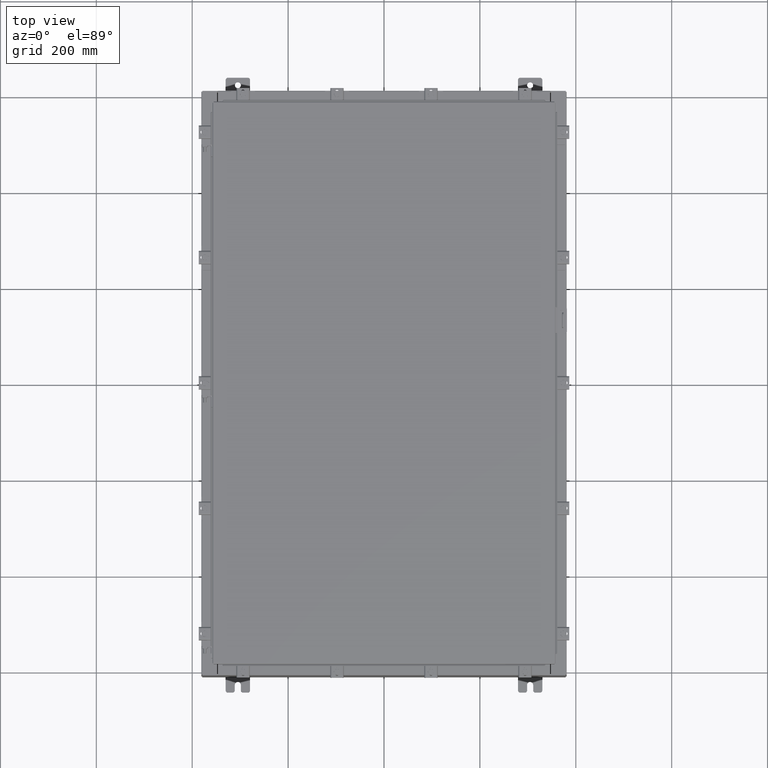
[diagram: clean part render]
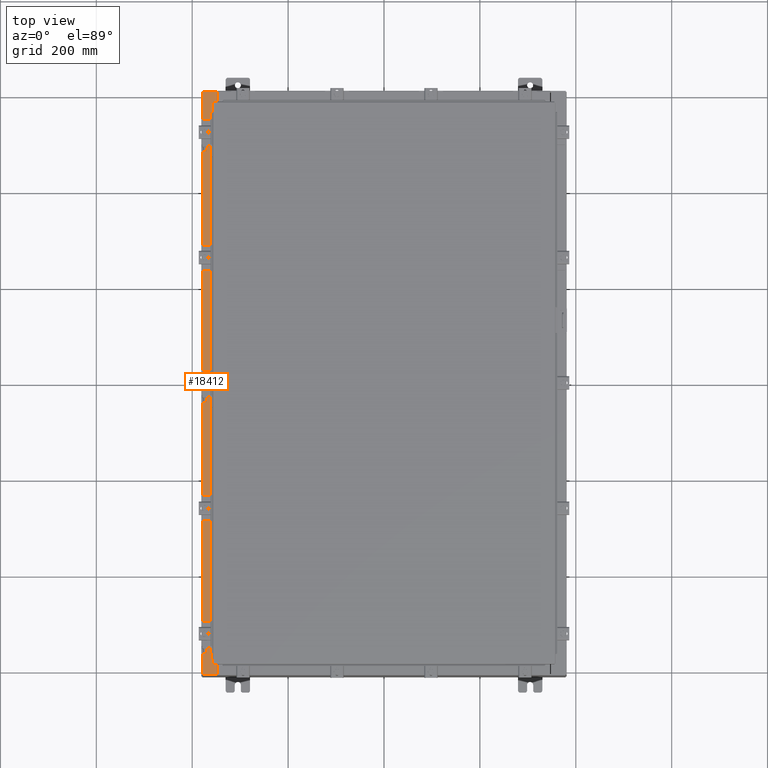
[diagram: same view with one face highlighted and labeled with its STEP entity id]
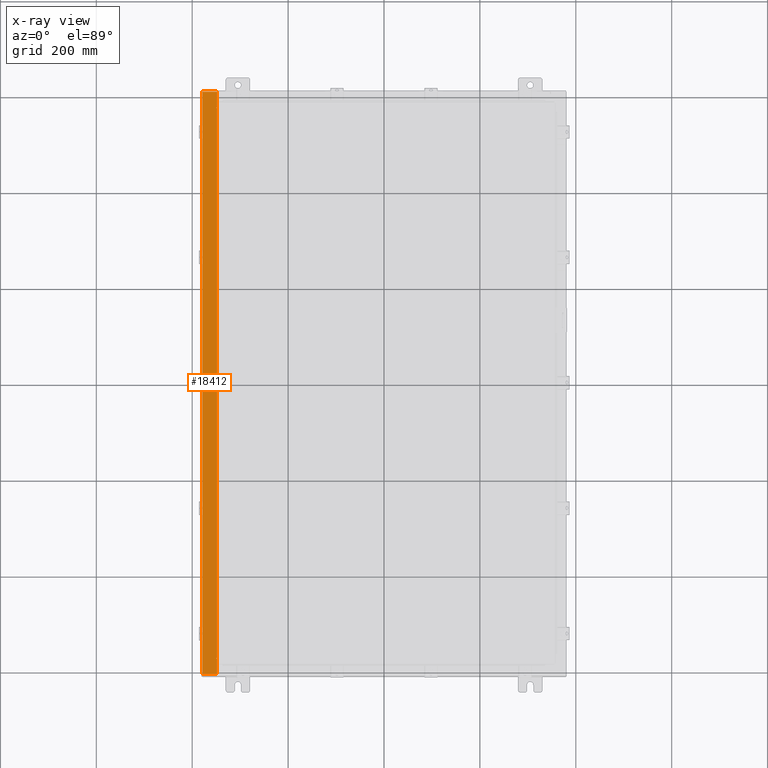
[diagram: x-ray of the same camera — body ghosted, the highlighted face saturated]
A machine part, top view. The second image highlights one B-rep face of the part: STEP entity #18412.
The next image is the same camera in x-ray: the body ghosted, the highlighted face saturated — about 0% of this face is hidden behind the body in this view.
In plain terms, the highlighted planar face has unit normal (0, -0, -1).
Its self-contained STEP definition (entity closure, byte-faithful):
#184 = VERTEX_POINT ( 'NONE', #13271 ) ;
#240 = CARTESIAN_POINT ( 'NONE',  ( -7.105562016127586800E-014, -23.92529999999998200, 9.925300000000104800 ) ) ;
#720 = CARTESIAN_POINT ( 'NONE',  ( -13.75005000000003700, -22.61242499999997300, 9.925300000000008900 ) ) ;
#1049 = CARTESIAN_POINT ( 'NONE',  ( -13.75005000000003700, 22.61242500000000200, 9.925300000000008900 ) ) ;
#1480 = EDGE_CURVE ( 'NONE', #2238, #11731, #4685, .T. ) ;
#2238 = VERTEX_POINT ( 'NONE', #19620 ) ;
#2393 = ORIENTED_EDGE ( 'NONE', *, *, #5030, .F. ) ;
#2642 = DIRECTION ( 'NONE',  ( 1.000000000000000000, 0.0000000000000000000, 0.0000000000000000000 ) ) ;
#2695 = EDGE_LOOP ( 'NONE', ( #4223, #19213, #23004, #6409, #20455, #5871, #19754, #6890, #2393, #11668, #3245, #10117 ) ) ;
#2727 = LINE ( 'NONE', #5250, #16699 ) ;
#2787 = EDGE_CURVE ( 'NONE', #12703, #15545, #5531, .T. ) ;
#2980 = DIRECTION ( 'NONE',  ( 1.000000000000000000, 0.0000000000000000000, 0.0000000000000000000 ) ) ;
#3001 = PLANE ( 'NONE',  #16446 ) ;
#3026 = CARTESIAN_POINT ( 'NONE',  ( -13.69970000000003900, 22.63110000000000400, 9.925300000000007100 ) ) ;
#3245 = ORIENTED_EDGE ( 'NONE', *, *, #1480, .F. ) ;
#3676 = EDGE_CURVE ( 'NONE', #7210, #10365, #20337, .T. ) ;
#3778 = AXIS2_PLACEMENT_3D ( 'NONE', #1049, #14369, #2980 ) ;
#4021 = VECTOR ( 'NONE', #9174, 39.37007874015748100 ) ;
#4223 = ORIENTED_EDGE ( 'NONE', *, *, #3676, .F. ) ;
#4300 = DIRECTION ( 'NONE',  ( 4.567295697298285000E-017, 1.000000000000000000, -4.567295697298248600E-017 ) ) ;
#4685 = LINE ( 'NONE', #11755, #9159 ) ;
#4933 = DIRECTION ( 'NONE',  ( -1.000000000000000000, 0.0000000000000000000, -7.132762385546384700E-015 ) ) ;
#5030 = EDGE_CURVE ( 'NONE', #7065, #18020, #22102, .T. ) ;
#5250 = CARTESIAN_POINT ( 'NONE',  ( -13.69970000000003900, 4.533177998439465900E-016, 9.925300000000007100 ) ) ;
#5531 = LINE ( 'NONE', #240, #10557 ) ;
#5871 = ORIENTED_EDGE ( 'NONE', *, *, #13083, .T. ) ;
#6229 = CARTESIAN_POINT ( 'NONE',  ( -7.105562016127584200E-014, 23.92529999999999600, 9.925300000000103000 ) ) ;
#6409 = ORIENTED_EDGE ( 'NONE', *, *, #19323, .F. ) ;
#6674 = CARTESIAN_POINT ( 'NONE',  ( -13.75005000000003700, -22.63109999999997500, 9.925300000000008900 ) ) ;
#6890 = ORIENTED_EDGE ( 'NONE', *, *, #23949, .F. ) ;
#6954 = VECTOR ( 'NONE', #21483, 39.37007874015748100 ) ;
#7018 = EDGE_CURVE ( 'NONE', #7210, #12587, #17258, .T. ) ;
#7065 = VERTEX_POINT ( 'NONE', #13996 ) ;
#7144 = DIRECTION ( 'NONE',  ( 0.0000000000000000000, 1.000000000000000000, -4.567295697298281900E-017 ) ) ;
#7210 = VERTEX_POINT ( 'NONE', #3026 ) ;
#7294 = LINE ( 'NONE', #21319, #21258 ) ;
#7375 = CARTESIAN_POINT ( 'NONE',  ( -13.75005000000003700, -22.63109999999997500, 9.925300000000007100 ) ) ;
#7917 = CARTESIAN_POINT ( 'NONE',  ( -14.91230000000003900, -23.92529999999998200, 9.925299999999998200 ) ) ;
#7955 = DIRECTION ( 'NONE',  ( 1.000000000000000000, 0.0000000000000000000, 0.0000000000000000000 ) ) ;
#8220 = EDGE_CURVE ( 'NONE', #12587, #20537, #15973, .T. ) ;
#8663 = CARTESIAN_POINT ( 'NONE',  ( -7.105562016127585500E-014, 4.533177998439511200E-016, 9.925300000000104800 ) ) ;
#9076 = LINE ( 'NONE', #20531, #4021 ) ;
#9130 = CARTESIAN_POINT ( 'NONE',  ( -13.69970000000003900, -23.92529999999998200, 9.925300000000007100 ) ) ;
#9159 = VECTOR ( 'NONE', #7955, 39.37007874015748100 ) ;
#9174 = DIRECTION ( 'NONE',  ( -0.0000000000000000000, -1.000000000000000000, -0.0000000000000000000 ) ) ;
#9576 = CARTESIAN_POINT ( 'NONE',  ( -13.69970000000003900, 23.92529999999999600, 9.925300000000005300 ) ) ;
#10097 = CARTESIAN_POINT ( 'NONE',  ( -13.69970000000003900, 4.533177998439465900E-016, 9.925300000000007100 ) ) ;
#10117 = ORIENTED_EDGE ( 'NONE', *, *, #24058, .F. ) ;
#10228 = VECTOR ( 'NONE', #18059, 39.37007874015748100 ) ;
#10365 = VERTEX_POINT ( 'NONE', #12337 ) ;
#10557 = VECTOR ( 'NONE', #15455, 39.37007874015748100 ) ;
#10928 = VECTOR ( 'NONE', #23325, 39.37007874015748100 ) ;
#10943 = CARTESIAN_POINT ( 'NONE',  ( -13.71270000000003900, 22.59375000000000000, 9.925300000000008900 ) ) ;
#11408 = CIRCLE ( 'NONE', #16963, 0.01867499999999949400 ) ;
#11489 = CARTESIAN_POINT ( 'NONE',  ( -13.75005000000003700, -22.59374999999997500, 9.925300000000008900 ) ) ;
#11668 = ORIENTED_EDGE ( 'NONE', *, *, #23521, .F. ) ;
#11731 = VERTEX_POINT ( 'NONE', #10943 ) ;
#11755 = CARTESIAN_POINT ( 'NONE',  ( -13.75005000000003700, 22.59375000000000000, 9.925300000000008900 ) ) ;
#11812 = VERTEX_POINT ( 'NONE', #7375 ) ;
#11990 = DIRECTION ( 'NONE',  ( 0.0000000000000000000, 1.000000000000000000, -4.567295697298281900E-017 ) ) ;
#12314 = CARTESIAN_POINT ( 'NONE',  ( -13.69970000000003900, 22.63110000000000400, 9.925300000000007100 ) ) ;
#12337 = CARTESIAN_POINT ( 'NONE',  ( -13.75005000000003700, 22.63110000000000000, 9.925300000000007100 ) ) ;
#12481 = VECTOR ( 'NONE', #19957, 39.37007874015748100 ) ;
#12587 = VERTEX_POINT ( 'NONE', #9576 ) ;
#12703 = VERTEX_POINT ( 'NONE', #7917 ) ;
#13083 = EDGE_CURVE ( 'NONE', #15545, #184, #2727, .T. ) ;
#13243 = CARTESIAN_POINT ( 'NONE',  ( -14.91230000000003900, 23.92529999999999600, 9.925299999999998200 ) ) ;
#13271 = CARTESIAN_POINT ( 'NONE',  ( -13.69970000000003900, -22.63109999999998200, 9.925300000000007100 ) ) ;
#13971 = EDGE_CURVE ( 'NONE', #11812, #184, #20828, .T. ) ;
#13996 = CARTESIAN_POINT ( 'NONE',  ( -13.71270000000003900, -22.59374999999997500, 9.925300000000008900 ) ) ;
#14035 = DIRECTION ( 'NONE',  ( -7.132762385546384700E-015, 4.567295697298281300E-017, 1.000000000000000000 ) ) ;
#14369 = DIRECTION ( 'NONE',  ( -7.132762385546384700E-015, 4.567295697298281300E-017, 1.000000000000000000 ) ) ;
#15455 = DIRECTION ( 'NONE',  ( 1.000000000000000000, -4.379057701015053300E-047, 7.132762385546384700E-015 ) ) ;
#15545 = VERTEX_POINT ( 'NONE', #9130 ) ;
#15973 = LINE ( 'NONE', #6229, #10928 ) ;
#16286 = DIRECTION ( 'NONE',  ( 7.132762385546384700E-015, -4.567295697298280600E-017, -1.000000000000000000 ) ) ;
#16446 = AXIS2_PLACEMENT_3D ( 'NONE', #8663, #16286, #4933 ) ;
#16667 = VECTOR ( 'NONE', #11990, 39.37007874015748100 ) ;
#16699 = VECTOR ( 'NONE', #7144, 39.37007874015748100 ) ;
#16963 = AXIS2_PLACEMENT_3D ( 'NONE', #720, #14035, #2642 ) ;
#17258 = LINE ( 'NONE', #10097, #16667 ) ;
#17656 = CARTESIAN_POINT ( 'NONE',  ( -13.71270000000003900, -22.59374999999997500, 9.925300000000008900 ) ) ;
#18020 = VERTEX_POINT ( 'NONE', #11489 ) ;
#18059 = DIRECTION ( 'NONE',  ( -1.000000000000000000, -8.681145560800197900E-014, 4.340572780400098900E-014 ) ) ;
#18412 = ADVANCED_FACE ( 'NONE', ( #18942 ), #3001, .F. ) ;
#18942 = FACE_OUTER_BOUND ( 'NONE', #2695, .T. ) ;
#19157 = CIRCLE ( 'NONE', #3778, 0.01867499999999949400 ) ;
#19213 = ORIENTED_EDGE ( 'NONE', *, *, #7018, .T. ) ;
#19323 = EDGE_CURVE ( 'NONE', #12703, #20537, #7294, .T. ) ;
#19620 = CARTESIAN_POINT ( 'NONE',  ( -13.75005000000003700, 22.59375000000000000, 9.925300000000007100 ) ) ;
#19754 = ORIENTED_EDGE ( 'NONE', *, *, #13971, .F. ) ;
#19957 = DIRECTION ( 'NONE',  ( 1.000000000000000000, -8.681145560800197900E-014, -4.340572780400098900E-014 ) ) ;
#20337 = LINE ( 'NONE', #12314, #10228 ) ;
#20455 = ORIENTED_EDGE ( 'NONE', *, *, #2787, .T. ) ;
#20531 = CARTESIAN_POINT ( 'NONE',  ( -13.71270000000003900, 22.59375000000000000, 9.925300000000008900 ) ) ;
#20537 = VERTEX_POINT ( 'NONE', #13243 ) ;
#20828 = LINE ( 'NONE', #6674, #12481 ) ;
#21258 = VECTOR ( 'NONE', #4300, 39.37007874015748100 ) ;
#21319 = CARTESIAN_POINT ( 'NONE',  ( -14.91230000000003700, 23.92529999999999600, 9.925299999999998200 ) ) ;
#21483 = DIRECTION ( 'NONE',  ( -1.000000000000000000, 0.0000000000000000000, 0.0000000000000000000 ) ) ;
#22102 = LINE ( 'NONE', #17656, #6954 ) ;
#23004 = ORIENTED_EDGE ( 'NONE', *, *, #8220, .T. ) ;
#23325 = DIRECTION ( 'NONE',  ( -1.000000000000000000, 4.379057701015053300E-047, -7.132762385546384700E-015 ) ) ;
#23521 = EDGE_CURVE ( 'NONE', #11731, #7065, #9076, .T. ) ;
#23949 = EDGE_CURVE ( 'NONE', #18020, #11812, #11408, .T. ) ;
#24058 = EDGE_CURVE ( 'NONE', #10365, #2238, #19157, .T. ) ;